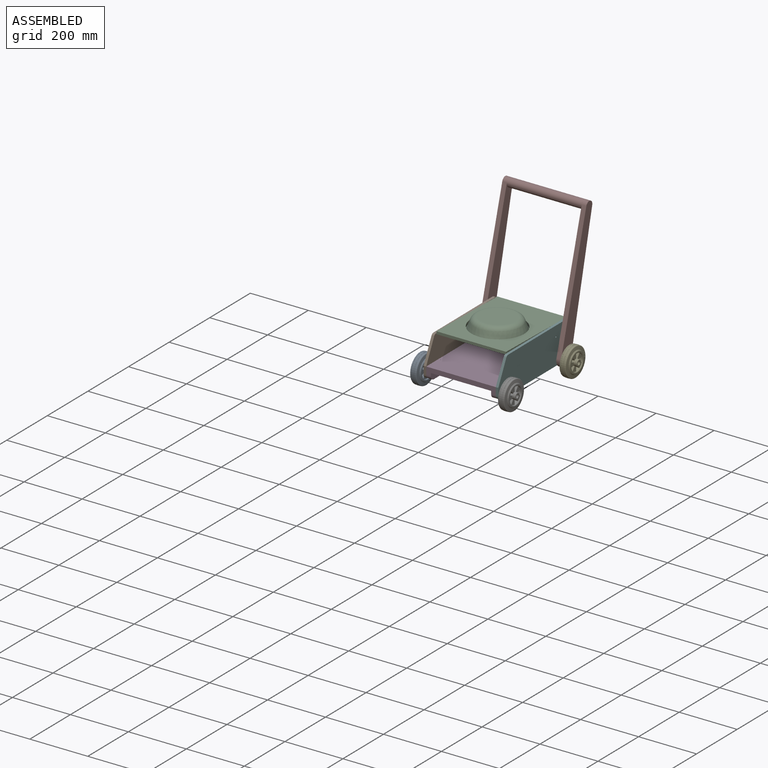
[diagram: assembled view]
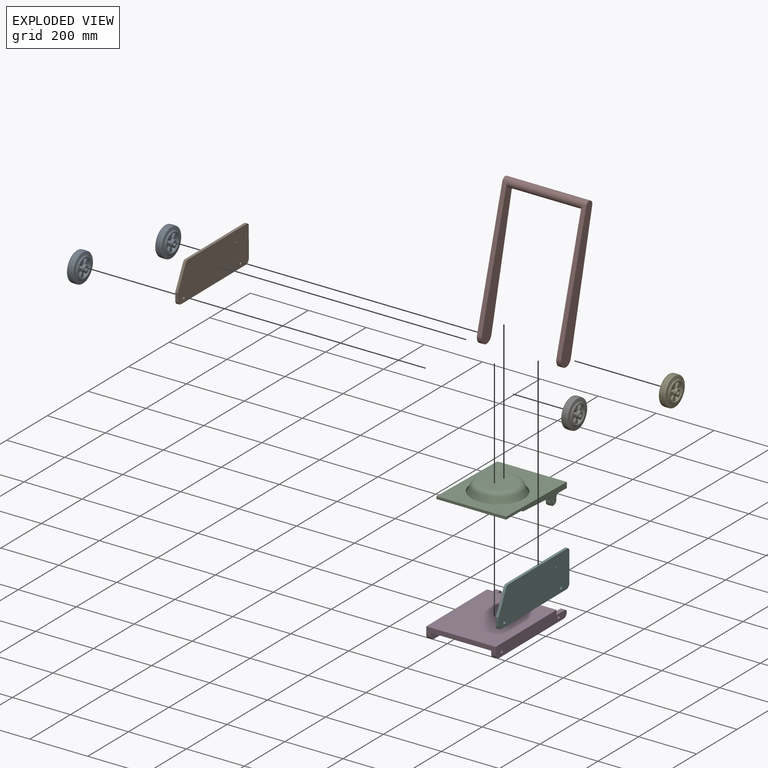
[diagram: exploded view]
GUIDED TOUR — MATED ASSEMBLY WITH SUBASSEMBLIES (Onshape document 170e3e27c5b3f31e19a47088, AutoMate assembly 170e3e27c5b3f31e19a47088_af56618dc72ae8b877241685_38816002cdeaa6fd347088b0_default)

This assembly has 16 component occurrences arranged in 9 top-level units: 6 individual components plus 3 subassemblies (S0, S1, S2). The tour has two levels: first the top level, where each subassembly is treated as one rigid unit; then each subassembly is toured internally in its own section (nesting deeper than one subassembly level is flattened into its subassembly's section).

Components are labeled P0..P15 across the whole record; subassembly units are labeled S0..S2. A mate is a constraint between two units; its type names the relative motion it leaves free:
  FASTENED — locks the two components together rigidly (no relative motion),
  PLANAR — leaves sliding in the plane through the listed point (normal = the listed direction) and rotation about that normal free,
  REVOLUTE — leaves rotation about the listed axis free (a hinge).
Axis/direction vectors are unit vectors and 'through' points are millimeter coordinates, both in the assembly's world frame.

TOP-LEVEL MATES (between units; each subassembly's internal mates are listed in its own section)
  1. REVOLUTE "Drehen 3": P0 <-> S2, axis (1.000, 0.000, 0.000) through (-75.04, 677.73, 225.45) mm
  2. REVOLUTE "Drehen 1": S0 <-> P6, axis (1.000, 0.000, 0.000) through (189.96, 651.48, 301.36) mm
  3. REVOLUTE "Drehen 5": P7 <-> P6, axis (-1.000, 0.000, 0.000) through (198.96, 397.73, 224.51) mm
  4. REVOLUTE "Drehen 4": P5 <-> S2, axis (-1.000, 0.000, 0.000) through (214.96, 677.73, 225.45) mm
  5. REVOLUTE "Drehen 2": P13 <-> P1, axis (1.000, 0.000, 0.000) through (-59.04, 397.73, 224.51) mm

TOP-LEVEL ASSEMBLY ORDER
  1. S2 — the base component [order verified]
  2. S0 [order verified]
  3. S1 [order verified]
  4. P6 [order verified]
  5. P1 [order verified]
  6. P13 [order verified]
  7. P0 [order verified]
  8. P7 [order verified]
  9. P5 [order verified]
Order-tag legend:
  [order verified] — this step's position reverses a verified removal order: the component was checked to insert without passing through the ones already placed.

Of the 16 component occurrences, 11 carry the full construction recipe — the FeatureScript program that regenerates the part's solid from scratch; the rest are supplied as boundary geometry only. Each toured unit is shown spotlighted twice — assembled, then exploded with a leader line back to its socket (green = recipe-attached component, orange = geometry-only, blue = subassembly unit; the rest desaturated gray).
NOTE — this tour is split across 2 documents so each fits a 32k-token context. This is document 1: the component sections continue in the remaining 1 document, each repeating the header above.
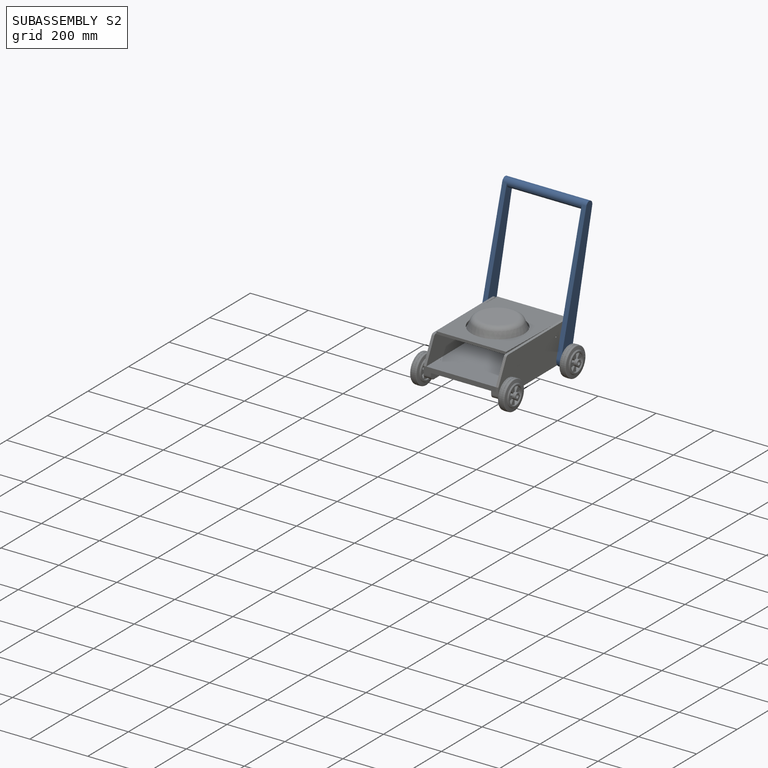
[diagram: subassembly S2 — assembled]
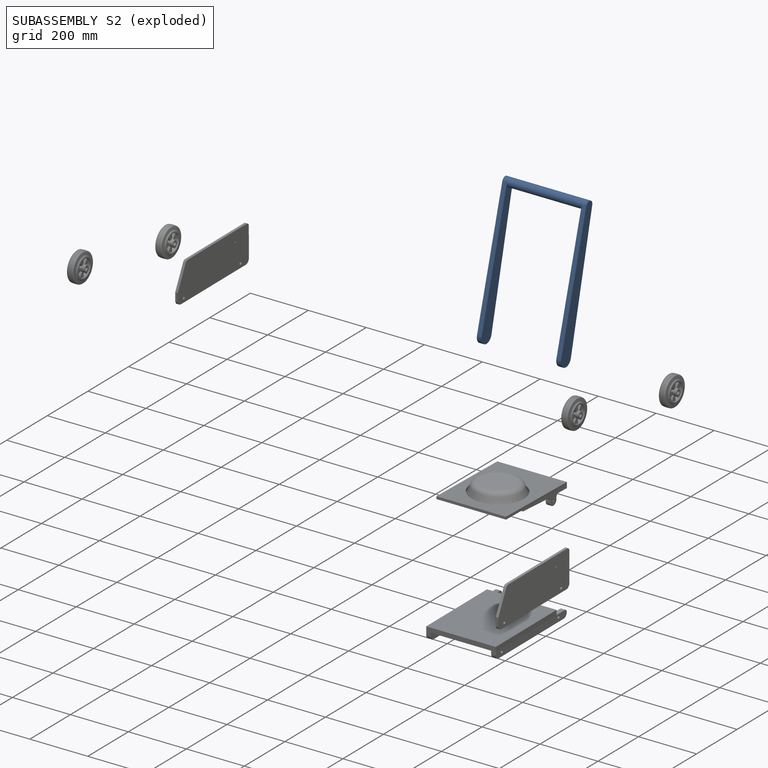
[diagram: subassembly S2 — exploded]
SUBASSEMBLY S2 — 3 components (P8, P9, P14), of which 3 recipe-attached; toured below.
Held by: REVOLUTE mate "Drehen 3" to P0; REVOLUTE mate "Drehen 4" to P5.
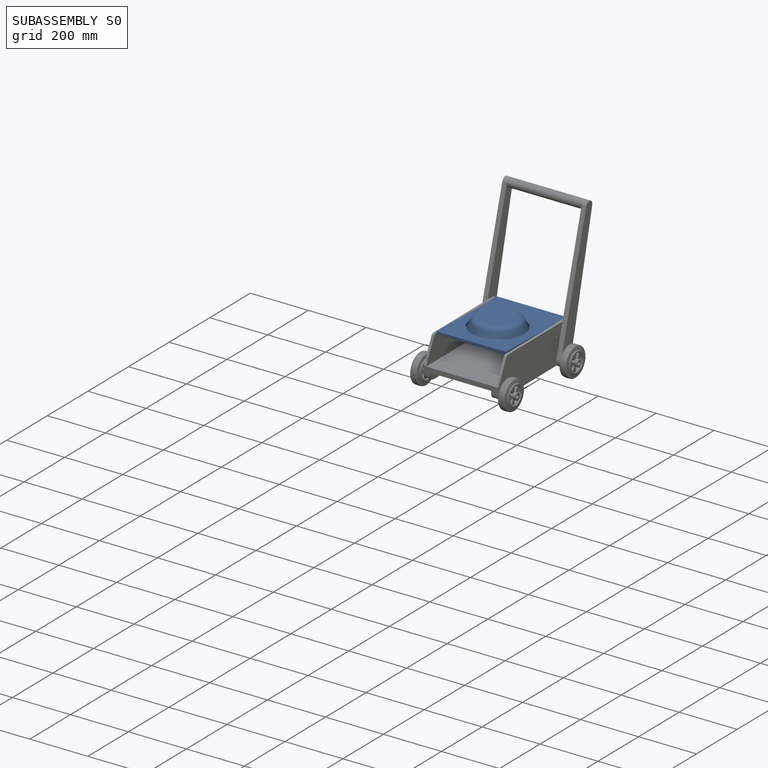
[diagram: subassembly S0 — assembled]
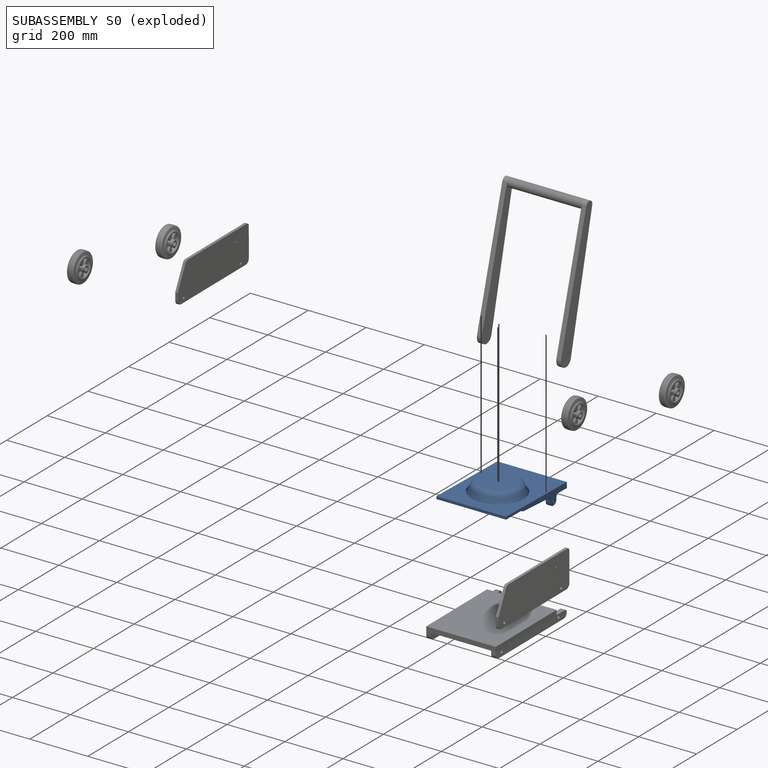
[diagram: subassembly S0 — exploded]
SUBASSEMBLY S0 — 4 components (P2, P10, P12, P15), of which 3 recipe-attached; toured below.
Held by: REVOLUTE mate "Drehen 1" to P6.
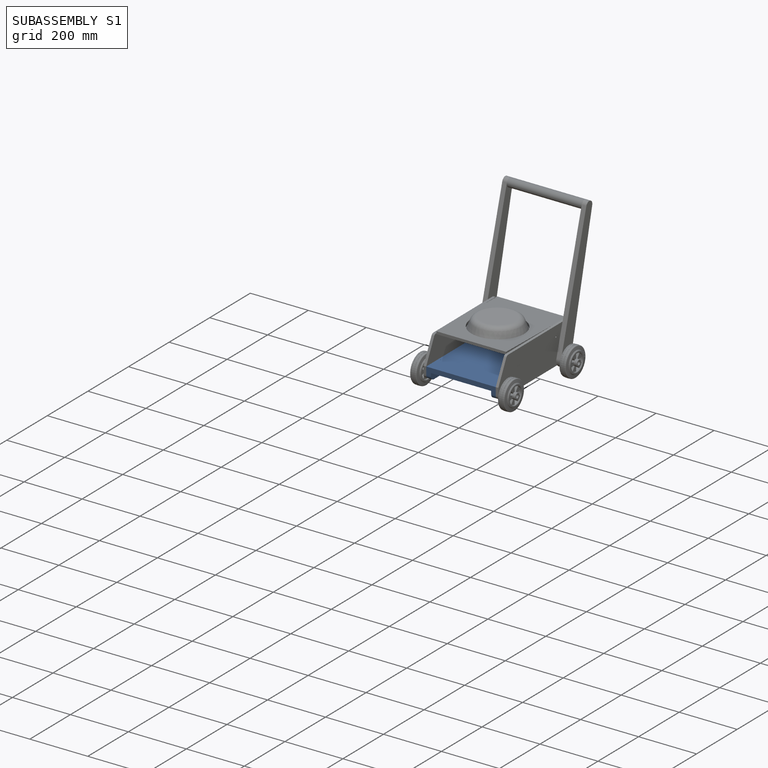
[diagram: subassembly S1 — assembled]
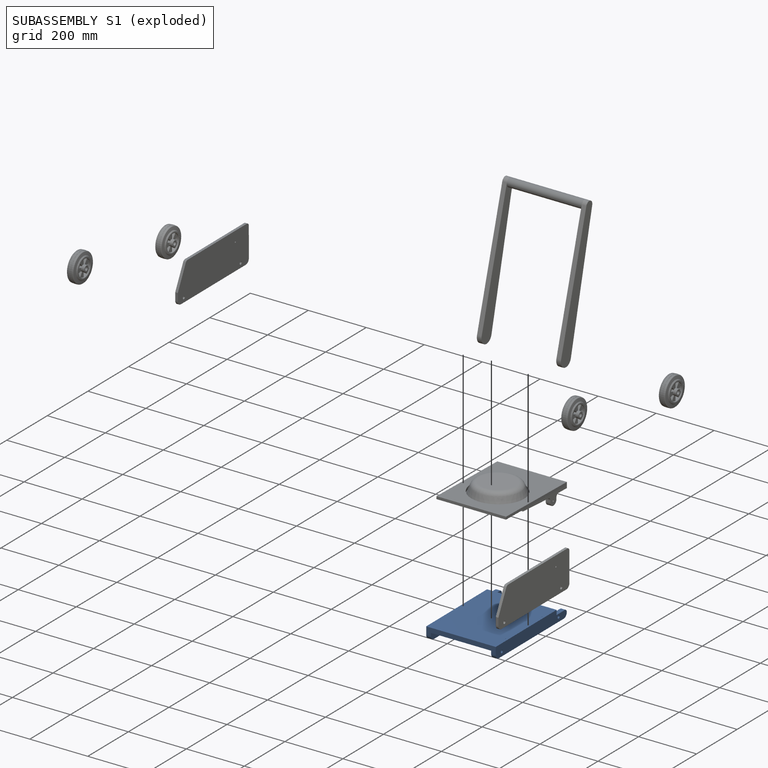
[diagram: subassembly S1 — exploded]
SUBASSEMBLY S1 — 3 components (P3, P4, P11), of which 3 recipe-attached; toured below.
Held by: no mates (free).
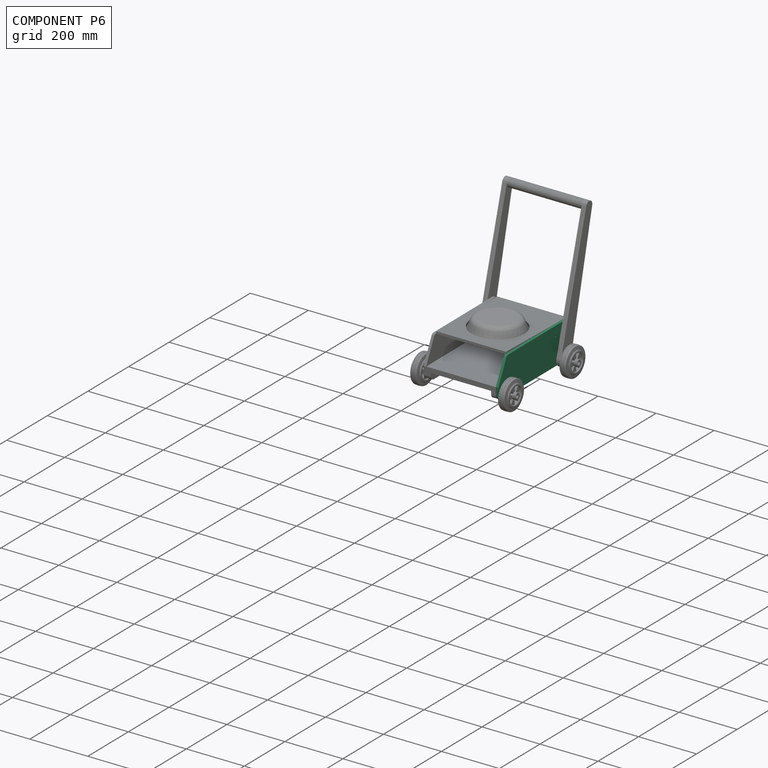
[diagram: component P6 — assembled]
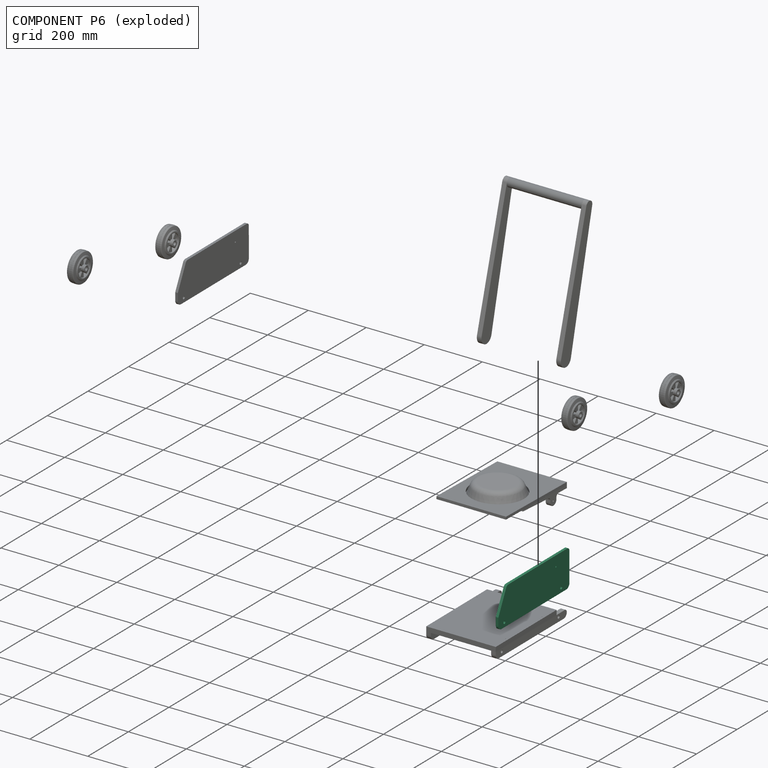
[diagram: component P6 — exploded]
COMPONENT P6 — same part as P1 (CADFS 00647017); its construction recipe is shown at P1.
Held by: REVOLUTE mate "Drehen 1" to P2; REVOLUTE mate "Drehen 5" to P7.
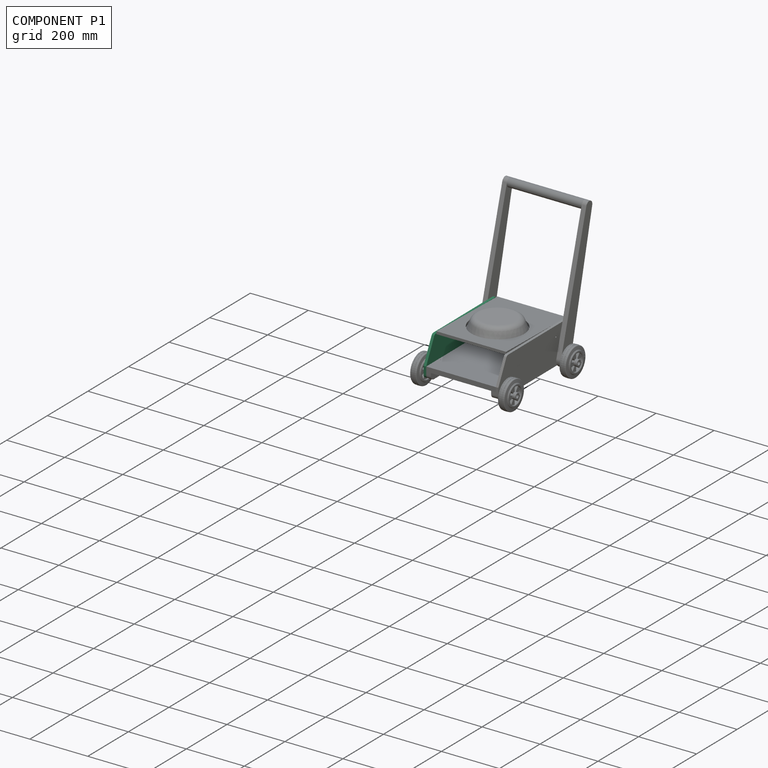
[diagram: component P1 — assembled]
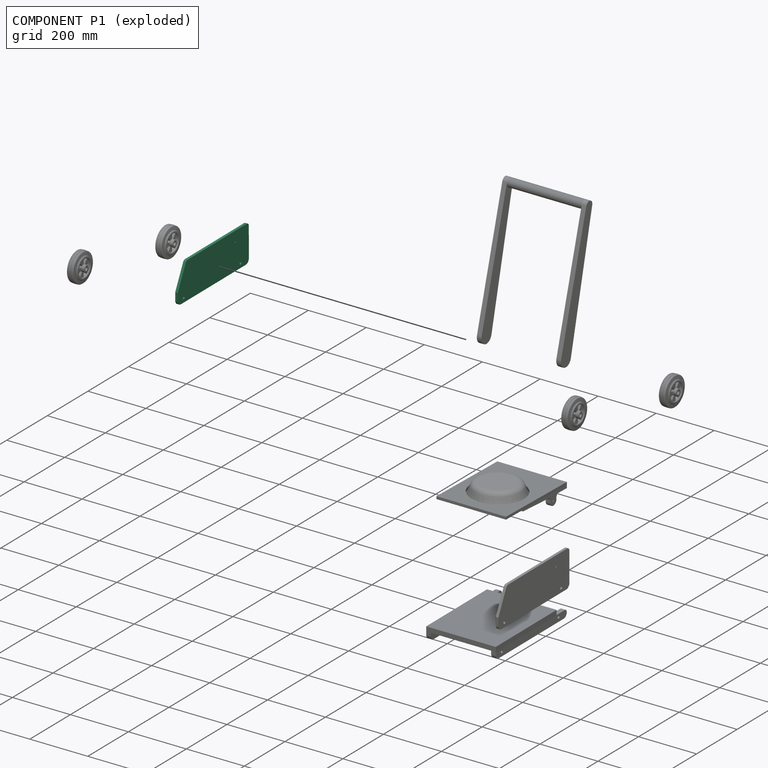
[diagram: component P1 — exploded]
COMPONENT P1 — recipe-attached (CADFS 00647017, mesh-verified: the recipe's output STEP matches this component's geometry to below the mesh-comparison resolution (tessellation chordal tolerance ~0.558 mm)).
Held by: REVOLUTE mate "Drehen 2" to P13.
Construction recipe (FeatureScript — the CAD program that rebuilds this solid; sketch coordinates are in the units given by the * unit suffixes, e.g. mm):

FeatureScript 1511;
import(path : "onshape/std/geometry.fs", version : "1511.0");
import(path : "onshape/std/common.fs", version : "1511.0");
const mm = millimeter;
const VERTEX = EntityType.VERTEX;
const EDGE = EntityType.EDGE;
const FACE = EntityType.FACE;
const BODY = EntityType.BODY;
function v(x, y){return vector(x, y);}
function OD(order){return orderDisambiguation(order);}
function OSD(set){return originalSetDisambiguation(set);}
function TD(topology){return topologyDisambiguation(topology);}
function TDD(query){return trueDependencyDisambiguation(query);}
function sQuery(a, b, c) {return sketchEntityQuery(a, b, c);}

annotation { "Feature Type Name" : "Feature", "Feature Type Description" : "" }
export const myFeature = defineFeature(function(context is Context, id is Id, definition is map)
    precondition{}
    {
        {
            var Q0;
            Q0=qCreatedBy(makeId("Right.planeOp"),FACE);
            var sketch = newSketch(context, id + "F0", { "sketchPlane" : qUnion([Q0])});
            skLineSegment(sketch, "E0.top", {"start": v(165, 101) * mm, "end": v(-126.39, 101) * mm});
            skLineSegment(sketch, "E0.left", {"start": v(175, -10) * mm, "end": v(175, 91) * mm});
            skLineSegment(sketch, "E0.right", {"start": v(-175, -10) * mm, "end": v(-175, 16) * mm});
            skPoint(sketch, "E0.middle", {"position": v(0, 50.5) * mm});
            skPoint(sketch, "E1.visualSharp", {"position": v(-175, 101) * mm});
            skArc(sketch, "E2.filletArc", {"start": v(175, 91) * mm, "mid": v(172.07, 98.07) * mm, "end": v(165, 101) * mm});
            skPoint(sketch, "E3.visualSharp", {"position": v(175, 0) * mm});
            skArc(sketch, "E3.filletArc", {"start": v(160, -25) * mm, "mid": v(170.6, -20.6) * mm, "end": v(175, -10) * mm});
            skPoint(sketch, "E4.visualSharp", {"position": v(-175, -19) * mm});
            skArc(sketch, "E4.filletArc", {"start": v(-175, -10) * mm, "mid": v(-170.6, -20.6) * mm, "end": v(-160, -25) * mm});
            skLineSegment(sketch, "E5", {"start": v(-160, -25) * mm, "end": v(160, -25) * mm});
            skCircle(sketch, "E6", {"center": v(-145, -10) * mm, "radius": 5 * mm});
            skCircle(sketch, "E7", {"center": v(135, -10) * mm, "radius": 5 * mm});
            skLineSegment(sketch, "E8", {"start": v(-145, -10) * mm, "end": v(135, -10) * mm, "construction": true});
            skLineSegment(sketch, "E9.bottom", {"start": v(-175, 0) * mm, "end": v(125, 0) * mm, "construction": true});
            skLineSegment(sketch, "E9.top", {"start": v(-175, 16) * mm, "end": v(125, 16) * mm, "construction": true});
            skLineSegment(sketch, "E9.left", {"start": v(-175, 0) * mm, "end": v(-175, 16) * mm});
            skLineSegment(sketch, "E9.right", {"start": v(125, 0) * mm, "end": v(125, 16) * mm, "construction": true});
            skPoint(sketch, "E9.middle", {"position": v(-25, 8) * mm});
            skLineSegment(sketch, "E10", {"start": v(125, 0) * mm, "end": v(125, 66) * mm, "construction": true});
            skLineSegment(sketch, "E11", {"start": v(125, 66) * mm, "end": v(109, 66) * mm, "construction": true});
            skCircle(sketch, "E12", {"center": v(109, 66) * mm, "radius": 2.5 * mm});
            skCircle(sketch, "E13", {"center": v(109, 66) * mm, "radius": 16 * mm, "construction": true});
            skLineSegment(sketch, "E14", {"start": v(-135.34, 95.47) * mm, "end": v(-175, 16) * mm});
            skPoint(sketch, "E15.visualSharp", {"position": v(-132.57, 101) * mm});
            skArc(sketch, "E15.filletArc", {"start": v(-126.39, 101) * mm, "mid": v(-131.65, 99.5) * mm, "end": v(-135.34, 95.47) * mm});
            skSolve(sketch);
        }
        {
            var Q0;
            Q0=makeQuery(id+"F0.imprint","IMPRINT",FACE,{"disambiguationData":[TD([[makeQuery(id+"F0.imprint","IMPRINT",EDGE,{"derivedFrom":sQuery(id+"F0.wireOp",EDGE,"E0.top")}),1.0]])]});
            extrude(context, id + "F1", {"entities" : qUnion([Q0]), "depth" : 9 * mm, "offsetDistance" : 25 * mm});
        }
    });
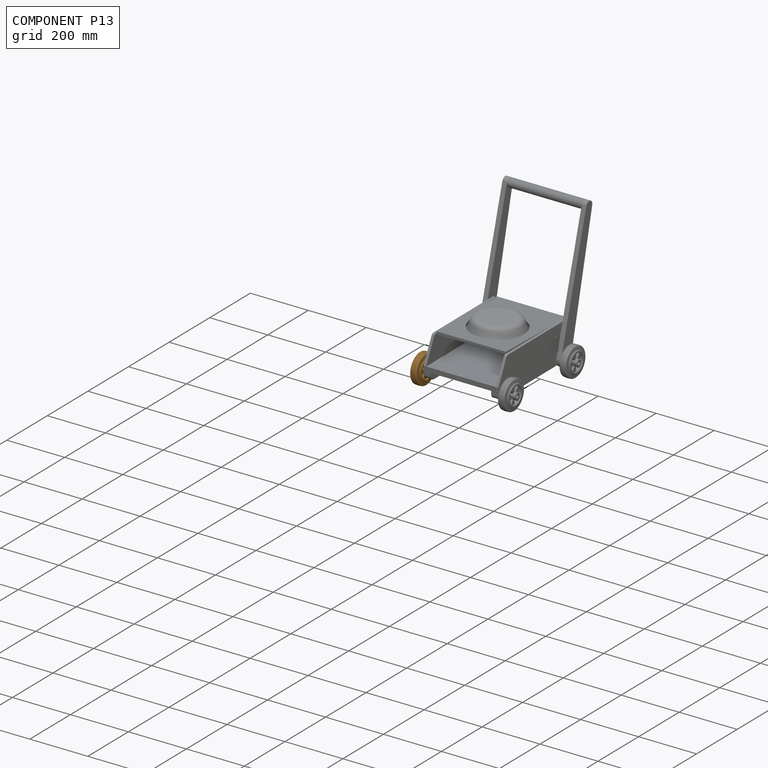
[diagram: component P13 — assembled]
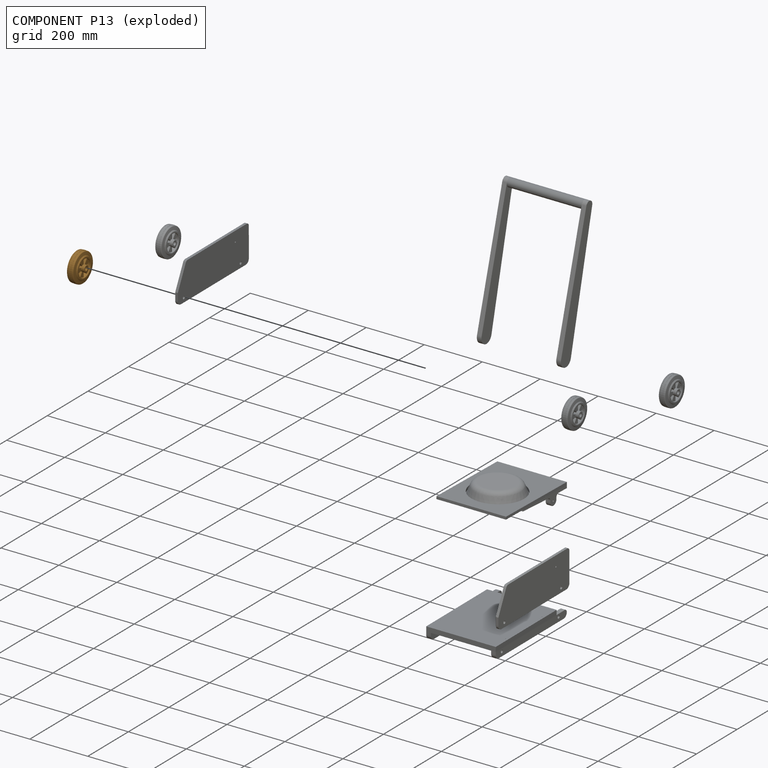
[diagram: component P13 — exploded]
COMPONENT P13 — geometry summary (no construction recipe available for this part):
  bounding box: 108.5 x 108.5 x 45.9 mm
  B-rep topology: 1 solid, 627 faces, 3196 edges
  volume: 166676 mm^3 (31% of its bounding box)
  symmetry: 2-fold rotationally symmetric about the z axis; mirror-symmetric across its z mid-plane
Held by: REVOLUTE mate "Drehen 2" to P1.
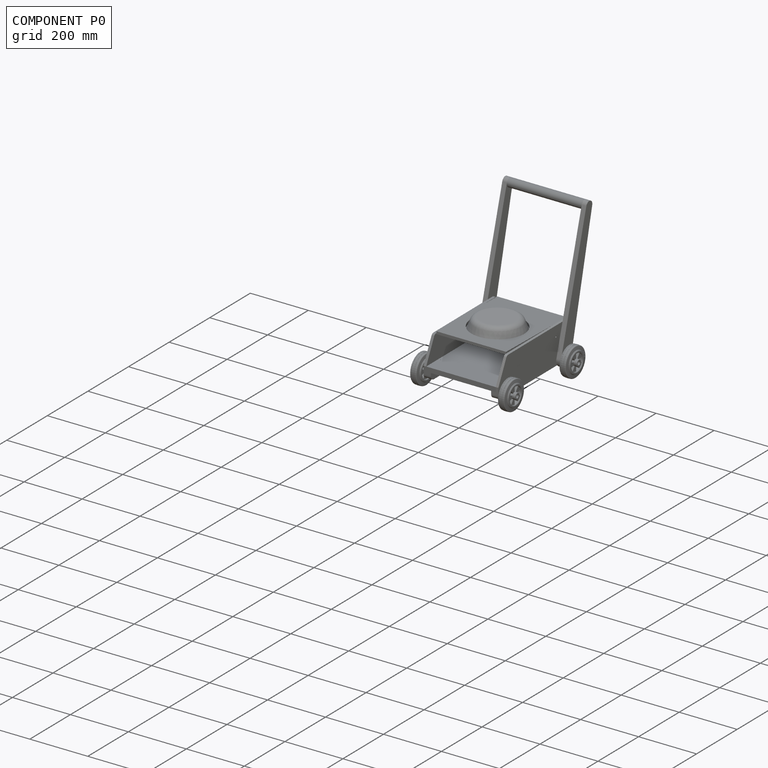
[diagram: component P0 — assembled]
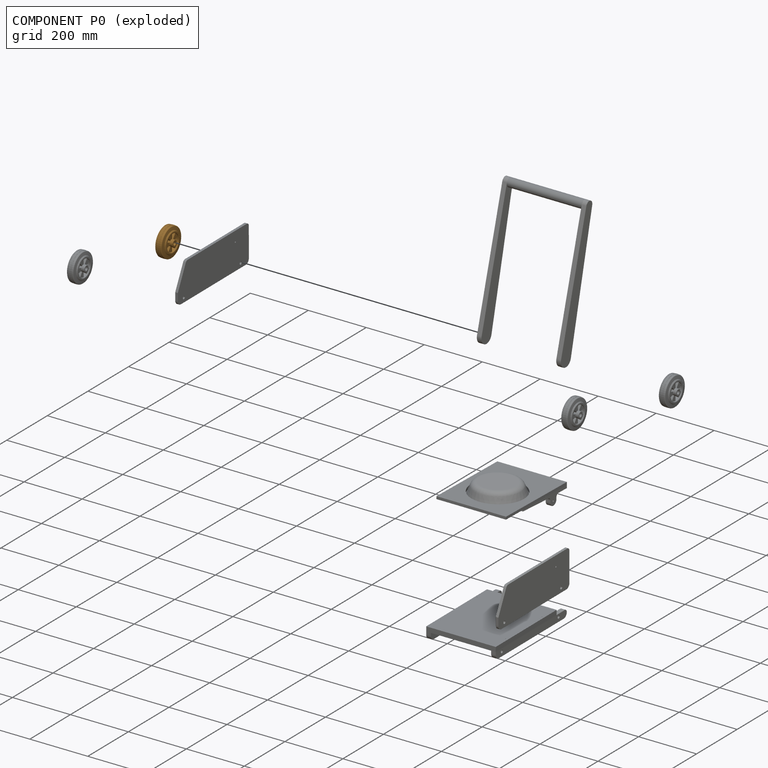
[diagram: component P0 — exploded]
COMPONENT P0 — geometry summary (no construction recipe available for this part):
  bounding box: 108.5 x 108.5 x 45.9 mm
  B-rep topology: 1 solid, 627 faces, 3196 edges
  volume: 166676 mm^3 (31% of its bounding box)
  symmetry: 2-fold rotationally symmetric about the z axis; mirror-symmetric across its z mid-plane
Held by: REVOLUTE mate "Drehen 3" to P8.
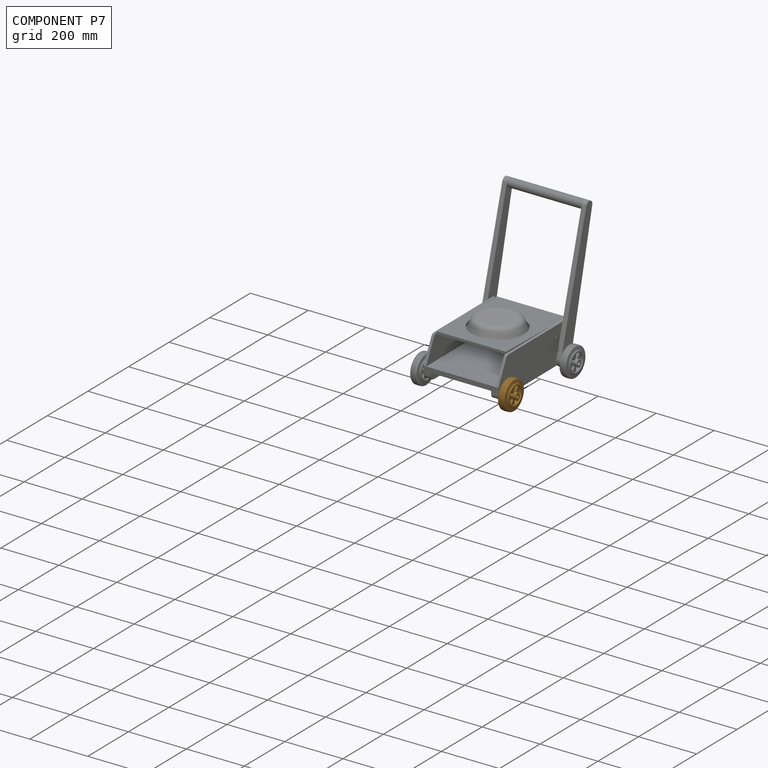
[diagram: component P7 — assembled]
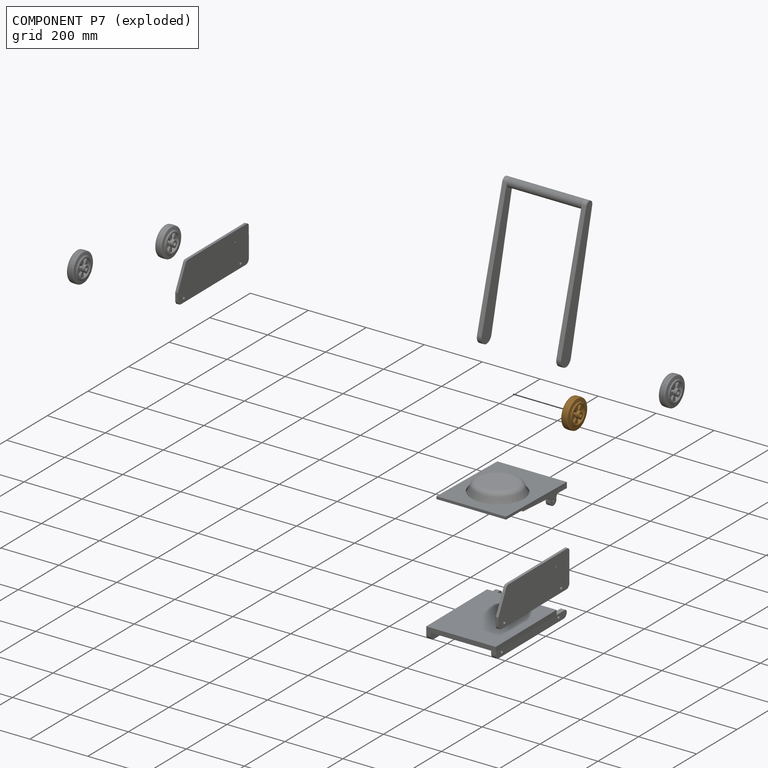
[diagram: component P7 — exploded]
COMPONENT P7 — geometry summary (no construction recipe available for this part):
  bounding box: 108.5 x 108.5 x 45.9 mm
  B-rep topology: 1 solid, 627 faces, 3196 edges
  volume: 166676 mm^3 (31% of its bounding box)
  symmetry: 2-fold rotationally symmetric about the z axis; mirror-symmetric across its z mid-plane
Held by: REVOLUTE mate "Drehen 5" to P6.
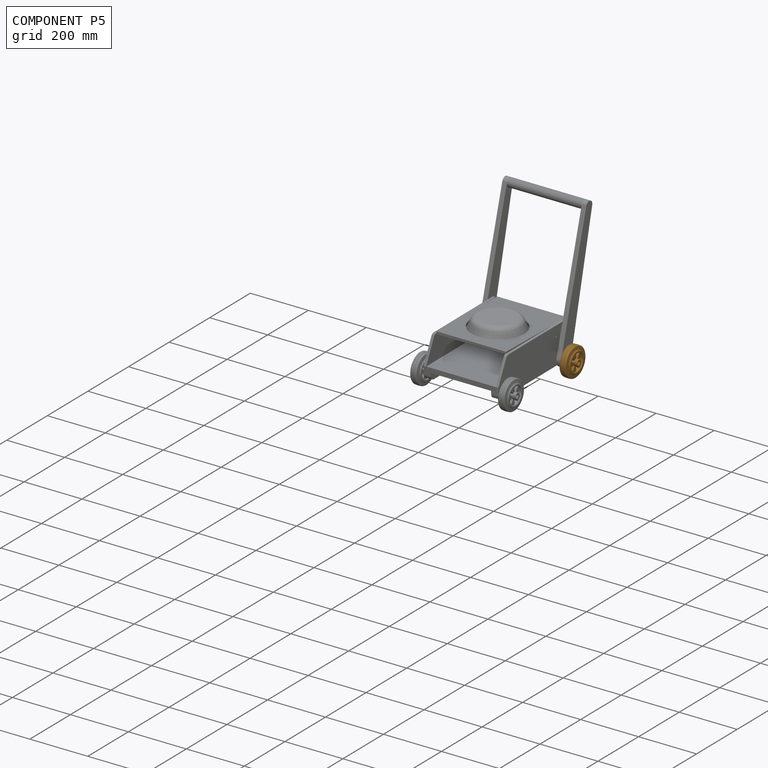
[diagram: component P5 — assembled]
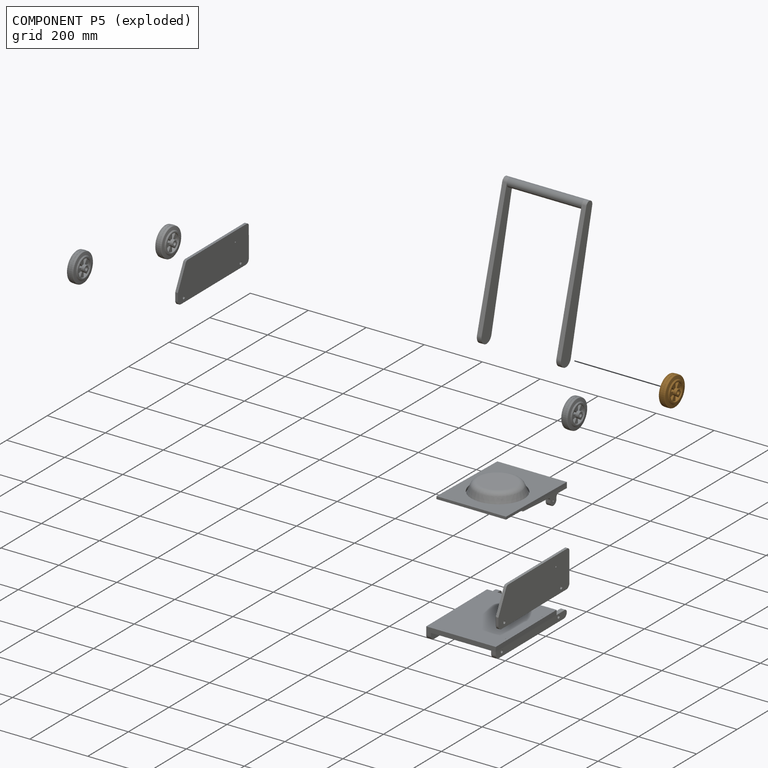
[diagram: component P5 — exploded]
COMPONENT P5 — geometry summary (no construction recipe available for this part):
  bounding box: 108.5 x 108.5 x 45.9 mm
  B-rep topology: 1 solid, 627 faces, 3196 edges
  volume: 166676 mm^3 (31% of its bounding box)
  symmetry: 2-fold rotationally symmetric about the z axis; mirror-symmetric across its z mid-plane
Held by: REVOLUTE mate "Drehen 4" to P8.
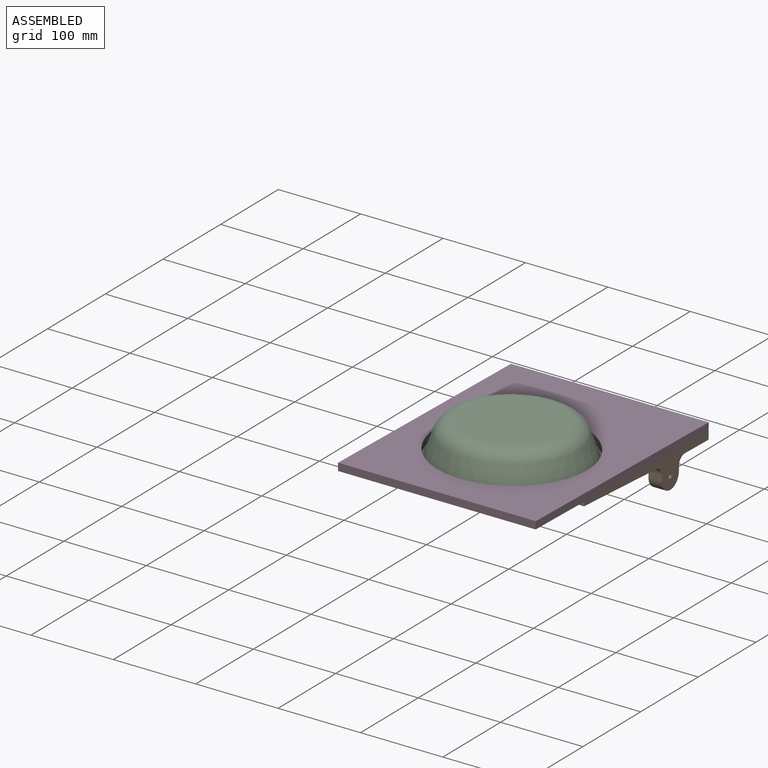
[diagram: subassembly S0 — assembled view]
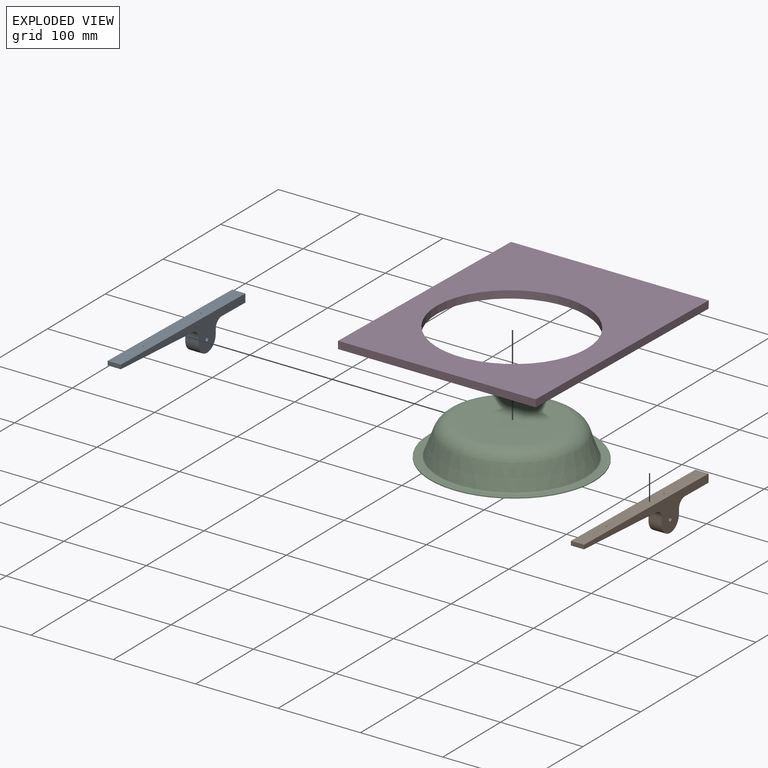
[diagram: subassembly S0 — exploded view]
SUBASSEMBLY S0 TOUR — 4 components, shown here in isolation at its own camera.

INTERNAL MATES
  1. FASTENED "Fest 1": P12 <-> P15, direction (0.000, 0.020, 1.000) through (69.96, 548.02, 329.44) mm
  2. PLANAR "Eben 1": P10 <-> P15, direction (0.000, 0.020, 1.000) through (189.96, 717.98, 326.04) mm
  3. PLANAR "Eben 2": P2 <-> P15, direction (0.000, 0.020, 1.000) through (-50.04, 717.98, 326.04) mm
  4. PLANAR "Eben 3": P15 <-> P10, direction (0.000, 1.000, -0.020) through (189.96, 717.98, 326.04) mm
  5. PLANAR "Eben 4": P15 <-> P2, direction (0.000, 1.000, -0.020) through (-50.04, 717.98, 326.04) mm
  6. PLANAR "Eben 2": P2 <-> P15, direction (0.000, 0.020, 1.000) through (-50.04, 717.98, 326.04) mm
  7. PLANAR "Eben 4": P15 <-> P2, direction (0.000, 1.000, -0.020) through (-50.04, 717.98, 326.04) mm
  8. PLANAR "Eben 4": P15 <-> P2, direction (0.000, 1.000, -0.020) through (-50.04, 717.98, 326.04) mm
  9. PLANAR "Eben 1": P15 <-> P2, direction (-1.000, 0.000, 0.000) through (-50.04, 717.98, 326.04) mm
  10. FASTENED "Fest 1": P12 <-> P15, direction (0.000, 0.020, 1.000) through (69.96, 548.02, 329.44) mm
  11. PLANAR "Eben 3": P15 <-> P10, direction (0.000, 1.000, -0.020) through (189.96, 717.98, 326.04) mm
  12. PLANAR "Eben 3": P15 <-> P10, direction (0.000, 1.000, -0.020) through (189.96, 717.98, 326.04) mm
  13. PLANAR "Eben 2": P15 <-> P10, direction (1.000, 0.000, 0.000) through (189.96, 717.98, 326.04) mm
  14. PLANAR "Eben 1": P10 <-> P15, direction (0.000, 0.020, 1.000) through (189.96, 717.98, 326.04) mm

ASSEMBLY ORDER (within the subassembly)
  1. P12 — the base component [order verified]
  2. P15 [order verified]
  3. P2 [order verified]
  4. P10 [order verified]
(P15 verified with a relaxed clearance tolerance: the source model stores slight part interference there.)
Order-tag legend:
  [order verified] — this step's position reverses a verified removal order: the component was checked to insert without passing through the ones already placed.
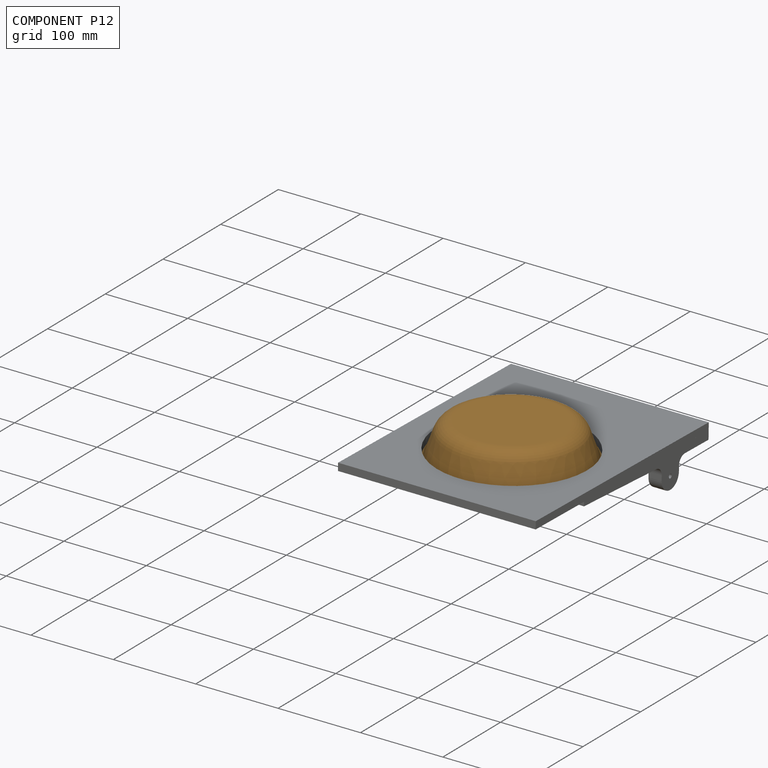
[diagram: component P12 — assembled]
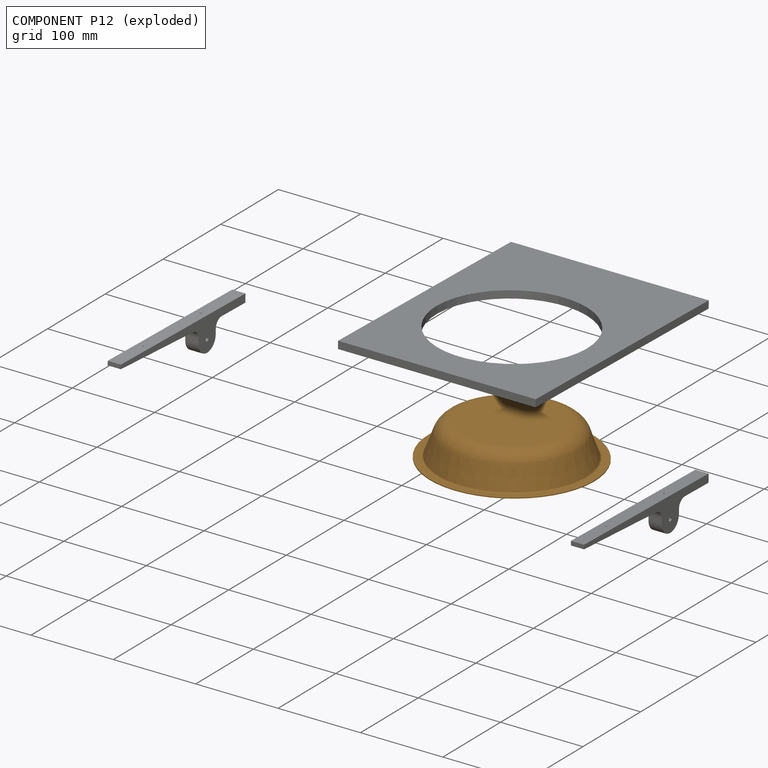
[diagram: component P12 — exploded]
COMPONENT P12 — geometry summary (no construction recipe available for this part):
  bounding box: 199.4 x 199.4 x 41.0 mm
  B-rep topology: 1 solid, 11 faces, 36 edges
  volume: 42845 mm^3 (3% of its bounding box)
  symmetry: revolution-symmetric about the z axis through its bounding-box center; mirror-symmetric across its x mid-plane, y mid-plane
Held by: FASTENED mate "Fest 1" to P15; FASTENED mate "Fest 1" to P15.
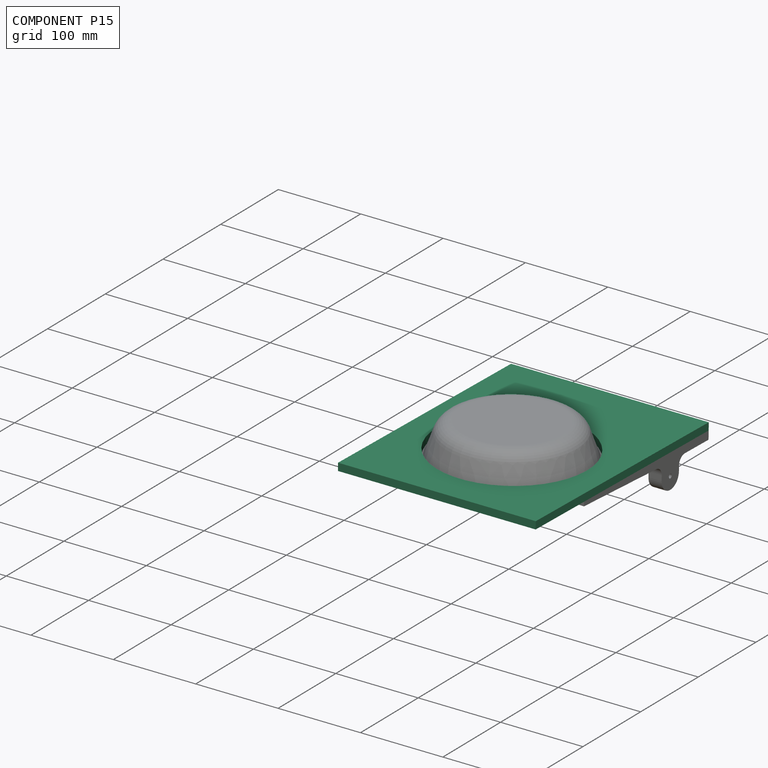
[diagram: component P15 — assembled]
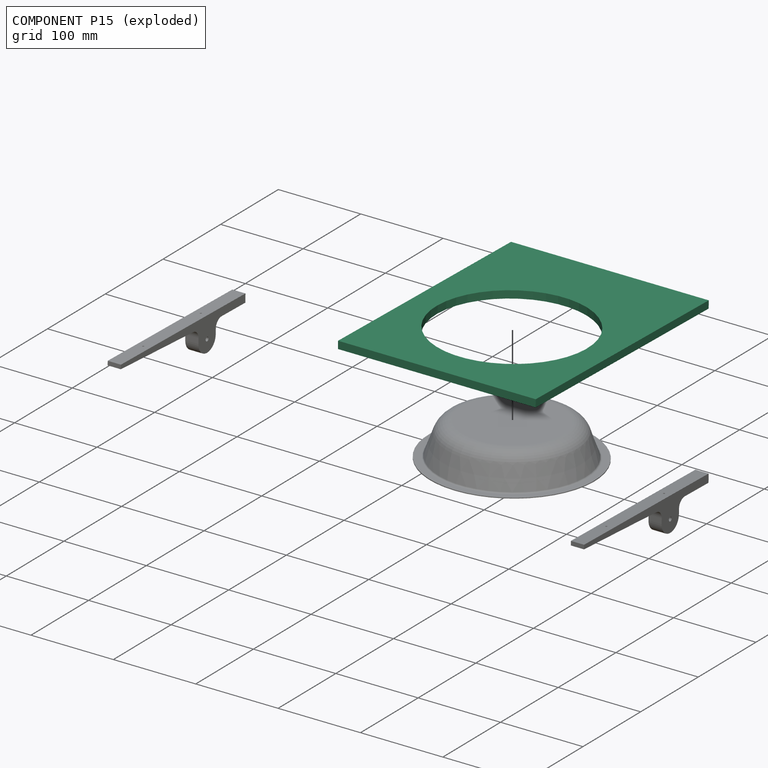
[diagram: component P15 — exploded]
COMPONENT P15 — recipe-attached (CADFS 00647014, mesh-verified: the recipe's output STEP matches this component's geometry to below the mesh-comparison resolution (tessellation chordal tolerance ~0.576 mm)).
Held by: FASTENED mate "Fest 1" to P12; PLANAR mate "Eben 1" to P10; PLANAR mate "Eben 2" to P2; PLANAR mate "Eben 3" to P10; PLANAR mate "Eben 4" to P2; PLANAR mate "Eben 2" to P2; PLANAR mate "Eben 4" to P2; PLANAR mate "Eben 4" to P2; PLANAR mate "Eben 1" to P2; FASTENED mate "Fest 1" to P12; PLANAR mate "Eben 3" to P10; PLANAR mate "Eben 3" to P10; PLANAR mate "Eben 2" to P10; PLANAR mate "Eben 1" to P10.
Construction recipe (FeatureScript — the CAD program that rebuilds this solid; sketch coordinates are in the units given by the * unit suffixes, e.g. mm):

FeatureScript 1511;
import(path : "onshape/std/geometry.fs", version : "1511.0");
import(path : "onshape/std/common.fs", version : "1511.0");
const mm = millimeter;
const VERTEX = EntityType.VERTEX;
const EDGE = EntityType.EDGE;
const FACE = EntityType.FACE;
const BODY = EntityType.BODY;
function v(x, y){return vector(x, y);}
function OD(order){return orderDisambiguation(order);}
function OSD(set){return originalSetDisambiguation(set);}
function TD(topology){return topologyDisambiguation(topology);}
function TDD(query){return trueDependencyDisambiguation(query);}
function sQuery(a, b, c) {return sketchEntityQuery(a, b, c);}

annotation { "Feature Type Name" : "Feature", "Feature Type Description" : "" }
export const myFeature = defineFeature(function(context is Context, id is Id, definition is map)
    precondition{}
    {
        {
            var Q0;
            Q0=qCreatedBy(makeId("Top.planeOp"),FACE);
            var sketch = newSketch(context, id + "F0", { "sketchPlane" : qUnion([Q0])});
            skLineSegment(sketch, "E0.bottom", {"start": v(120, -150) * mm, "end": v(-120, -150) * mm});
            skLineSegment(sketch, "E0.top", {"start": v(120, 150) * mm, "end": v(-120, 150) * mm});
            skLineSegment(sketch, "E0.left", {"start": v(120, -150) * mm, "end": v(120, 150) * mm});
            skLineSegment(sketch, "E0.right", {"start": v(-120, -150) * mm, "end": v(-120, 150) * mm});
            skPoint(sketch, "E0.middle", {"position": v(0, 0) * mm});
            skCircle(sketch, "E1", {"center": v(0, 20) * mm, "radius": 90 * mm});
            skSolve(sketch);
        }
        {
            var Q0;
            Q0 = qSketchRegion(id + "F0", true);
            extrude(context, id + "F1", {"entities" : qUnion([Q0]), "depth" : 9 * mm, "offsetDistance" : 25 * mm});
        }
    });
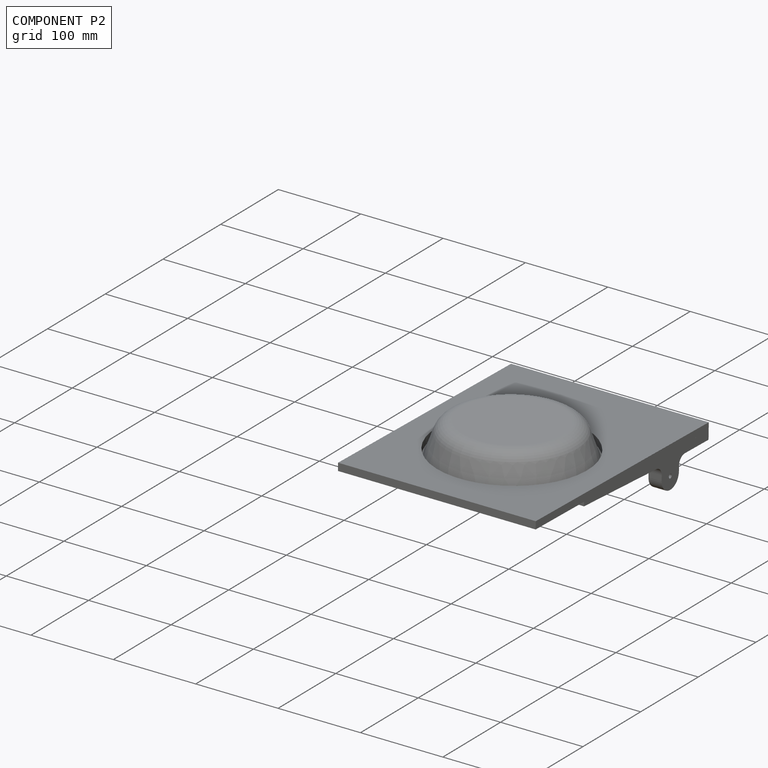
[diagram: component P2 — assembled]
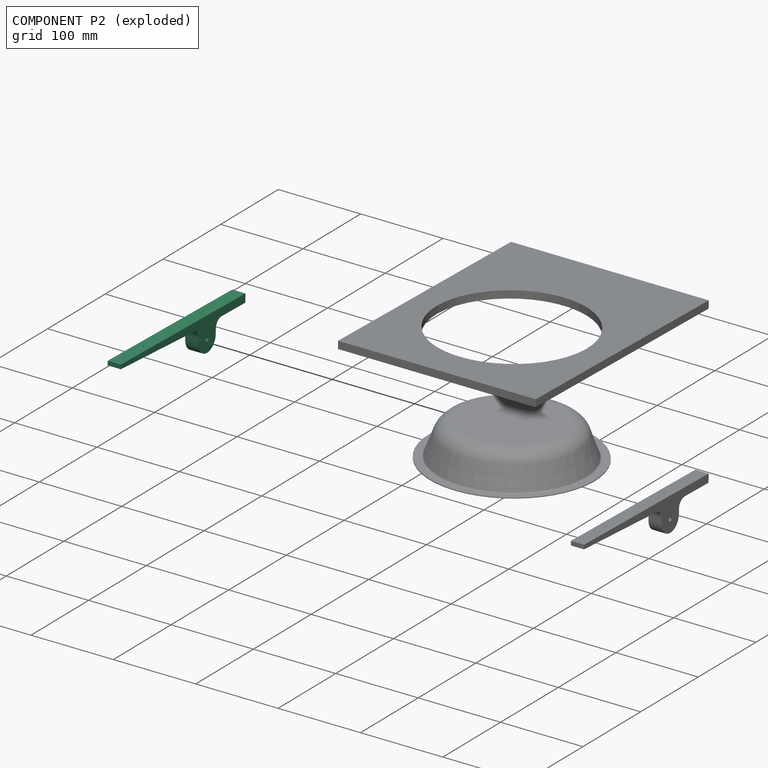
[diagram: component P2 — exploded]
COMPONENT P2 — recipe-attached (CADFS 00647015, mesh-verified: the recipe's output STEP matches this component's geometry to below the mesh-comparison resolution (tessellation chordal tolerance ~0.331 mm)).
Held by: PLANAR mate "Eben 2" to P15; PLANAR mate "Eben 4" to P15; PLANAR mate "Eben 2" to P15; PLANAR mate "Eben 4" to P15; PLANAR mate "Eben 4" to P15; PLANAR mate "Eben 1" to P15.
Construction recipe (FeatureScript — the CAD program that rebuilds this solid; sketch coordinates are in the units given by the * unit suffixes, e.g. mm):

FeatureScript 1511;
import(path : "onshape/std/geometry.fs", version : "1511.0");
import(path : "onshape/std/common.fs", version : "1511.0");
const mm = millimeter;
const VERTEX = EntityType.VERTEX;
const EDGE = EntityType.EDGE;
const FACE = EntityType.FACE;
const BODY = EntityType.BODY;
function v(x, y){return vector(x, y);}
function OD(order){return orderDisambiguation(order);}
function OSD(set){return originalSetDisambiguation(set);}
function TD(topology){return topologyDisambiguation(topology);}
function TDD(query){return trueDependencyDisambiguation(query);}
function sQuery(a, b, c) {return sketchEntityQuery(a, b, c);}

annotation { "Feature Type Name" : "Feature", "Feature Type Description" : "" }
export const myFeature = defineFeature(function(context is Context, id is Id, definition is map)
    precondition{}
    {
        {
            var Q0;
            Q0=qCreatedBy(makeId("Right.planeOp"),FACE);
            var sketch = newSketch(context, id + "F0", { "sketchPlane" : qUnion([Q0])});
            skLineSegment(sketch, "E0", {"start": v(0, 0) * mm, "end": v(-16, 0) * mm, "construction": true});
            skLineSegment(sketch, "E1", {"start": v(-16, 0) * mm, "end": v(-16, -66) * mm, "construction": true});
            skLineSegment(sketch, "E2.bottom", {"start": v(-16, -66) * mm, "end": v(-26, -66) * mm});
            skLineSegment(sketch, "E2.top", {"start": v(-21, 150) * mm, "end": v(-26, 150) * mm});
            skLineSegment(sketch, "E2.left", {"start": v(-16, -66) * mm, "end": v(-16, -25) * mm});
            skLineSegment(sketch, "E2.right", {"start": v(-26, -66) * mm, "end": v(-26, 150) * mm});
            skLineSegment(sketch, "E3.top", {"start": v(-6.36, 15) * mm, "end": v(0, 15) * mm});
            skLineSegment(sketch, "E4.trimOffspring", {"start": v(-6, -15) * mm, "end": v(0, -15) * mm});
            skLineSegment(sketch, "E5.trimOffspring", {"start": v(-16, 15) * mm, "end": v(-16, 150) * mm, "construction": true});
            skArc(sketch, "E6", {"start": v(0, 15) * mm, "mid": v(15, 0) * mm, "end": v(0, -15) * mm});
            skLineSegment(sketch, "E7", {"start": v(-16.36, 24.63) * mm, "end": v(-21, 150) * mm});
            skPoint(sketch, "E8.visualSharp", {"position": v(-16, 15) * mm});
            skArc(sketch, "E8.filletArc", {"start": v(-16.36, 24.63) * mm, "mid": v(-13.3, 17.8) * mm, "end": v(-6.36, 15) * mm});
            skPoint(sketch, "E9.visualSharp", {"position": v(-16, -15) * mm});
            skArc(sketch, "E9.filletArc", {"start": v(-6, -15) * mm, "mid": v(-13.07, -17.93) * mm, "end": v(-16, -25) * mm});
            skCircle(sketch, "E10", {"center": v(0, 0) * mm, "radius": 2.5 * mm});
            skSolve(sketch);
        }
        {
            var Q0;
            Q0 = qSketchRegion(id + "F0", true);
            extrude(context, id + "F1", {"entities" : qUnion([Q0]), "endBound" : BoundingType.SYMMETRIC, "depth" : 16 * mm, "offsetDistance" : 25 * mm});
        }
        {
            var Q0;
            Q0=qCreatedBy(makeId("Front.planeOp"),FACE);
            var sketch = newSketch(context, id + "F2", { "sketchPlane" : qUnion([Q0])});
            skCircle(sketch, "E11", {"center": v(0, -75) * mm, "radius": 1 * mm});
            skCircle(sketch, "E12", {"center": v(0, 0) * mm, "radius": 1 * mm});
            skCircle(sketch, "E13", {"center": v(0, 100) * mm, "radius": 1 * mm});
            skSolve(sketch);
        }
        {
            var Q0;
            Q0 = qSketchRegion(id + "F2", true);
            extrude(context, id + "F3", {"entities" : qUnion([Q0]), "operationType" : NewBodyOperationType.REMOVE, "endBound" : BoundingType.THROUGH_ALL, "depth" : 25 * mm, "offsetDistance" : 25 * mm});
        }
    });
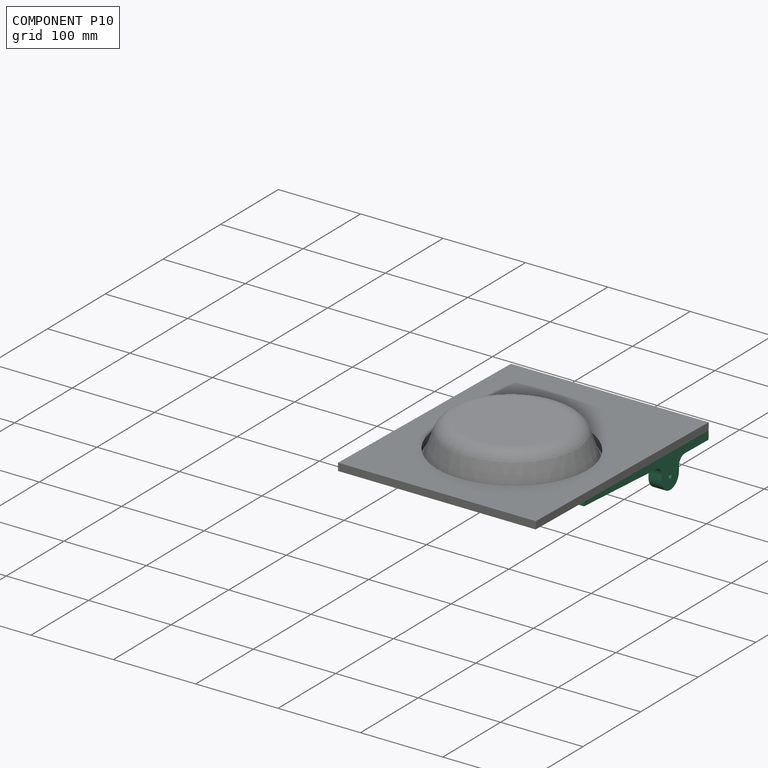
[diagram: component P10 — assembled]
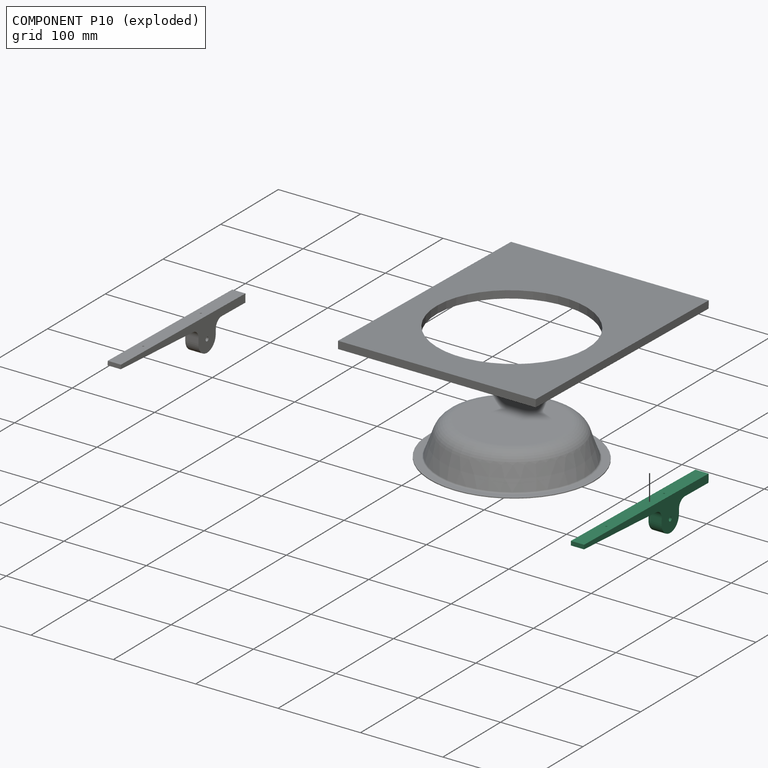
[diagram: component P10 — exploded]
COMPONENT P10 — same part as P2 (CADFS 00647015); its construction recipe is shown at P2.
Held by: PLANAR mate "Eben 1" to P15; PLANAR mate "Eben 3" to P15; PLANAR mate "Eben 3" to P15; PLANAR mate "Eben 3" to P15; PLANAR mate "Eben 2" to P15; PLANAR mate "Eben 1" to P15.
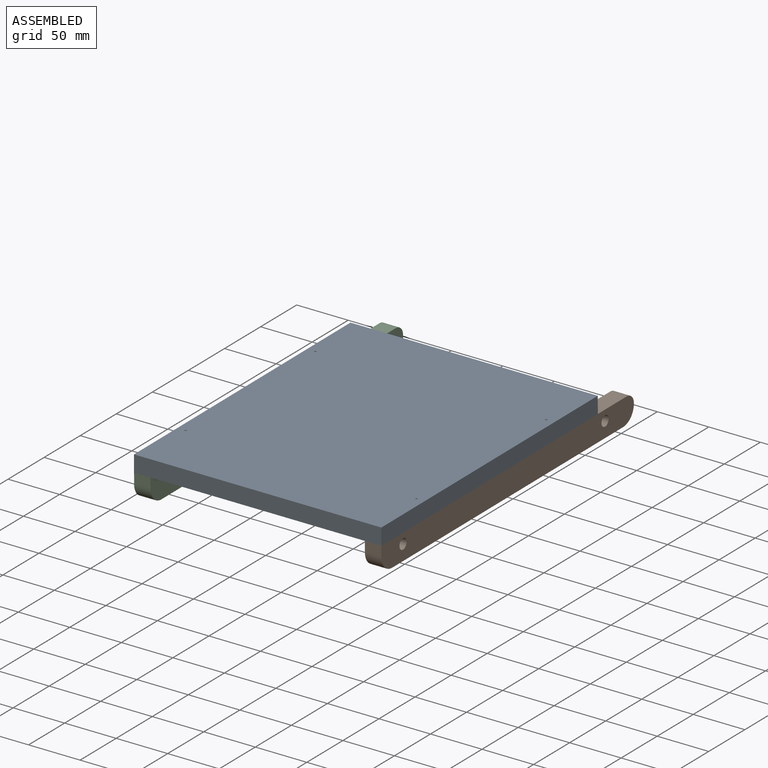
[diagram: subassembly S1 — assembled view]
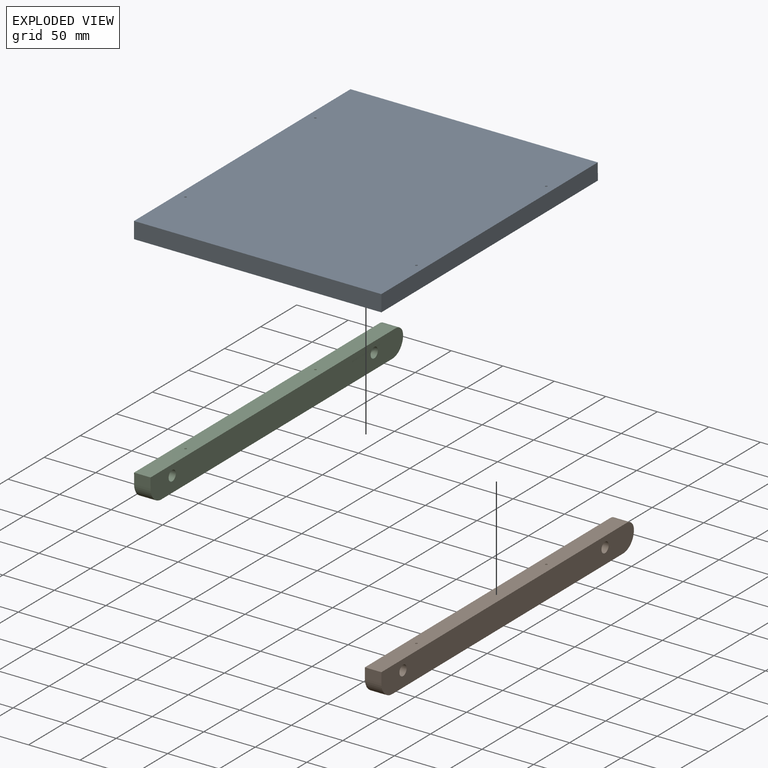
[diagram: subassembly S1 — exploded view]
SUBASSEMBLY S1 TOUR — 3 components, shown here in isolation at its own camera.

INTERNAL MATES
  1. FASTENED "Fest 1": P11 <-> P3, direction (0.000, -0.003, 1.000) through (-42.04, 427.70, 234.61) mm
  2. FASTENED "Fest 2": P4 <-> P3, direction (0.000, -0.003, 1.000) through (181.96, 427.70, 234.61) mm
  3. FASTENED "Fest 1": P11 <-> P3, direction (0.000, -0.003, 1.000) through (-42.04, 427.70, 234.61) mm
  4. FASTENED "Fest 2": P4 <-> P3, direction (0.000, -0.003, 1.000) through (181.96, 427.70, 234.61) mm

ASSEMBLY ORDER (within the subassembly)
  1. P11 — the base component [order verified]
  2. P4 [order verified]
  3. P3 [order verified]
Order-tag legend:
  [order verified] — this step's position reverses a verified removal order: the component was checked to insert without passing through the ones already placed.
